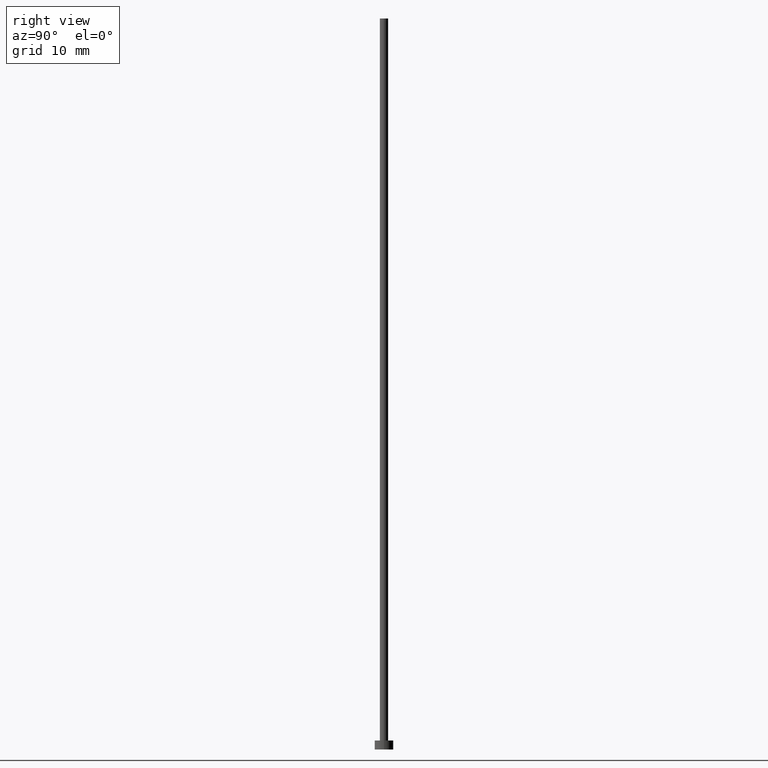
[diagram: clean part render]
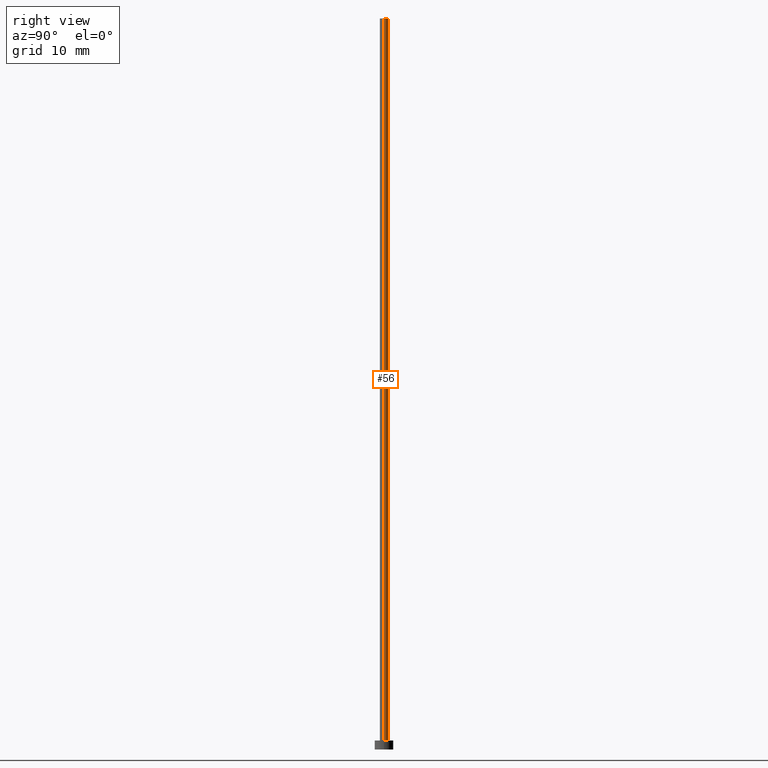
[diagram: same view with one face highlighted and labeled with its STEP entity id]
A machine part, right view. The second image highlights one B-rep face of the part: STEP entity #56.
In plain terms, the highlighted cylindrical surface (edge-blend (fillet) strip) has radius 0.55 mm, axis along (-0, -0, -1).
Its self-contained STEP definition (entity closure, byte-faithful):
#3 = CARTESIAN_POINT ( 'NONE',  ( -0.5500000000000000444, 0.000000000000000000, 98.00000000000000000 ) ) ;
#7 = ORIENTED_EDGE ( 'NONE', *, *, #97, .T. ) ;
#8 = EDGE_CURVE ( 'NONE', #40, #146, #24, .T. ) ;
#24 = CIRCLE ( 'NONE', #89, 0.5500000000000000444 ) ;
#34 = DIRECTION ( 'NONE',  ( -0.000000000000000000, -0.000000000000000000, -1.000000000000000000 ) ) ;
#36 = ORIENTED_EDGE ( 'NONE', *, *, #216, .T. ) ;
#40 = VERTEX_POINT ( 'NONE', #211 ) ;
#41 = CARTESIAN_POINT ( 'NONE',  ( 0.5500000000000000444, 6.735557395310442516E-17, 98.00000000000000000 ) ) ;
#44 = VECTOR ( 'NONE', #142, 1000.000000000000000 ) ;
#56 = ADVANCED_FACE ( 'NONE', ( #57 ), #136, .T. ) ;
#57 = FACE_OUTER_BOUND ( 'NONE', #233, .T. ) ;
#78 = CARTESIAN_POINT ( 'NONE',  ( 0.000000000000000000, 0.000000000000000000, 98.00000000000000000 ) ) ;
#89 = AXIS2_PLACEMENT_3D ( 'NONE', #78, #154, #170 ) ;
#90 = CARTESIAN_POINT ( 'NONE',  ( -0.5500000000000000444, 0.000000000000000000, 98.00000000000000000 ) ) ;
#97 = EDGE_CURVE ( 'NONE', #190, #171, #189, .T. ) ;
#108 = CARTESIAN_POINT ( 'NONE',  ( 0.5500000000000000444, 6.735557395310442516E-17, 1.199999999999999956 ) ) ;
#117 = VECTOR ( 'NONE', #240, 1000.000000000000000 ) ;
#118 = DIRECTION ( 'NONE',  ( -1.000000000000000000, 0.000000000000000000, 0.000000000000000000 ) ) ;
#122 = DIRECTION ( 'NONE',  ( 1.000000000000000000, 0.000000000000000000, 0.000000000000000000 ) ) ;
#123 = DIRECTION ( 'NONE',  ( 0.000000000000000000, 0.000000000000000000, 1.000000000000000000 ) ) ;
#136 = CYLINDRICAL_SURFACE ( 'NONE', #208, 0.5500000000000000444 ) ;
#142 = DIRECTION ( 'NONE',  ( -0.000000000000000000, -0.000000000000000000, -1.000000000000000000 ) ) ;
#146 = VERTEX_POINT ( 'NONE', #3 ) ;
#154 = DIRECTION ( 'NONE',  ( 0.000000000000000000, 0.000000000000000000, 1.000000000000000000 ) ) ;
#156 = ORIENTED_EDGE ( 'NONE', *, *, #177, .F. ) ;
#158 = CARTESIAN_POINT ( 'NONE',  ( 0.000000000000000000, 0.000000000000000000, 1.199999999999999956 ) ) ;
#165 = LINE ( 'NONE', #41, #44 ) ;
#166 = AXIS2_PLACEMENT_3D ( 'NONE', #158, #123, #122 ) ;
#170 = DIRECTION ( 'NONE',  ( 1.000000000000000000, 0.000000000000000000, 0.000000000000000000 ) ) ;
#171 = VERTEX_POINT ( 'NONE', #195 ) ;
#177 = EDGE_CURVE ( 'NONE', #146, #171, #238, .T. ) ;
#183 = ORIENTED_EDGE ( 'NONE', *, *, #8, .F. ) ;
#189 = CIRCLE ( 'NONE', #166, 0.5500000000000000444 ) ;
#190 = VERTEX_POINT ( 'NONE', #108 ) ;
#195 = CARTESIAN_POINT ( 'NONE',  ( -0.5500000000000000444, 0.000000000000000000, 1.199999999999999956 ) ) ;
#208 = AXIS2_PLACEMENT_3D ( 'NONE', #209, #34, #118 ) ;
#209 = CARTESIAN_POINT ( 'NONE',  ( 0.000000000000000000, 0.000000000000000000, 98.00000000000000000 ) ) ;
#211 = CARTESIAN_POINT ( 'NONE',  ( 0.5500000000000000444, 6.735557395310442516E-17, 98.00000000000000000 ) ) ;
#216 = EDGE_CURVE ( 'NONE', #40, #190, #165, .T. ) ;
#233 = EDGE_LOOP ( 'NONE', ( #183, #36, #7, #156 ) ) ;
#238 = LINE ( 'NONE', #90, #117 ) ;
#240 = DIRECTION ( 'NONE',  ( -0.000000000000000000, -0.000000000000000000, -1.000000000000000000 ) ) ;